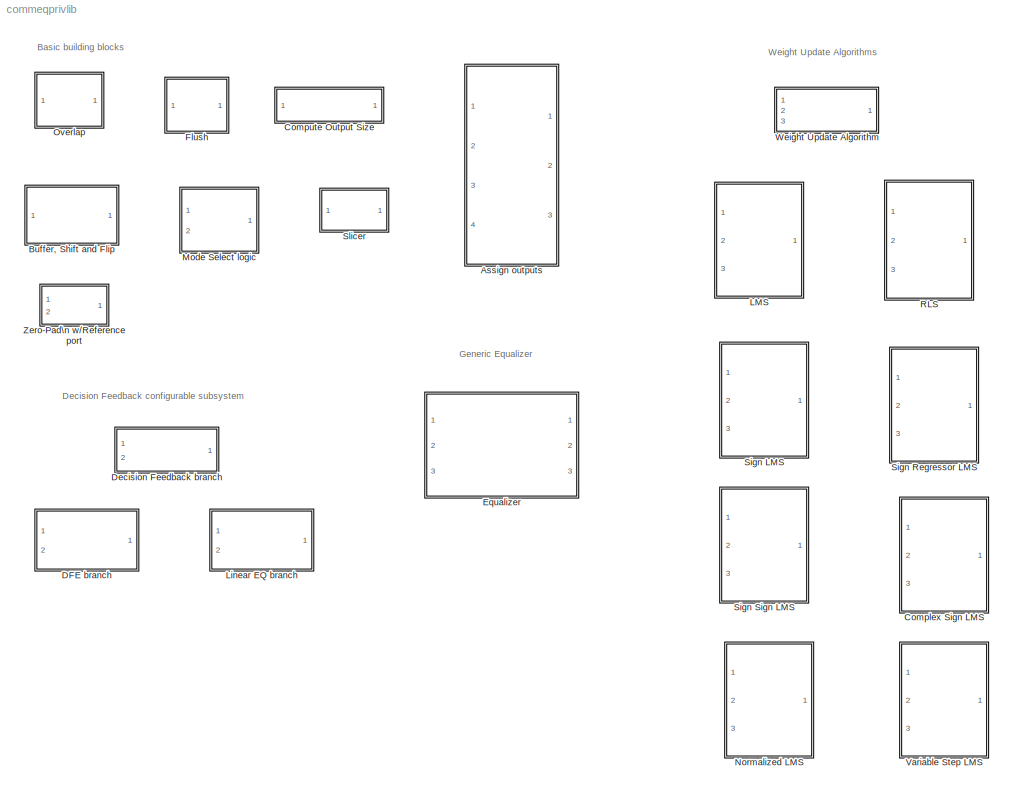
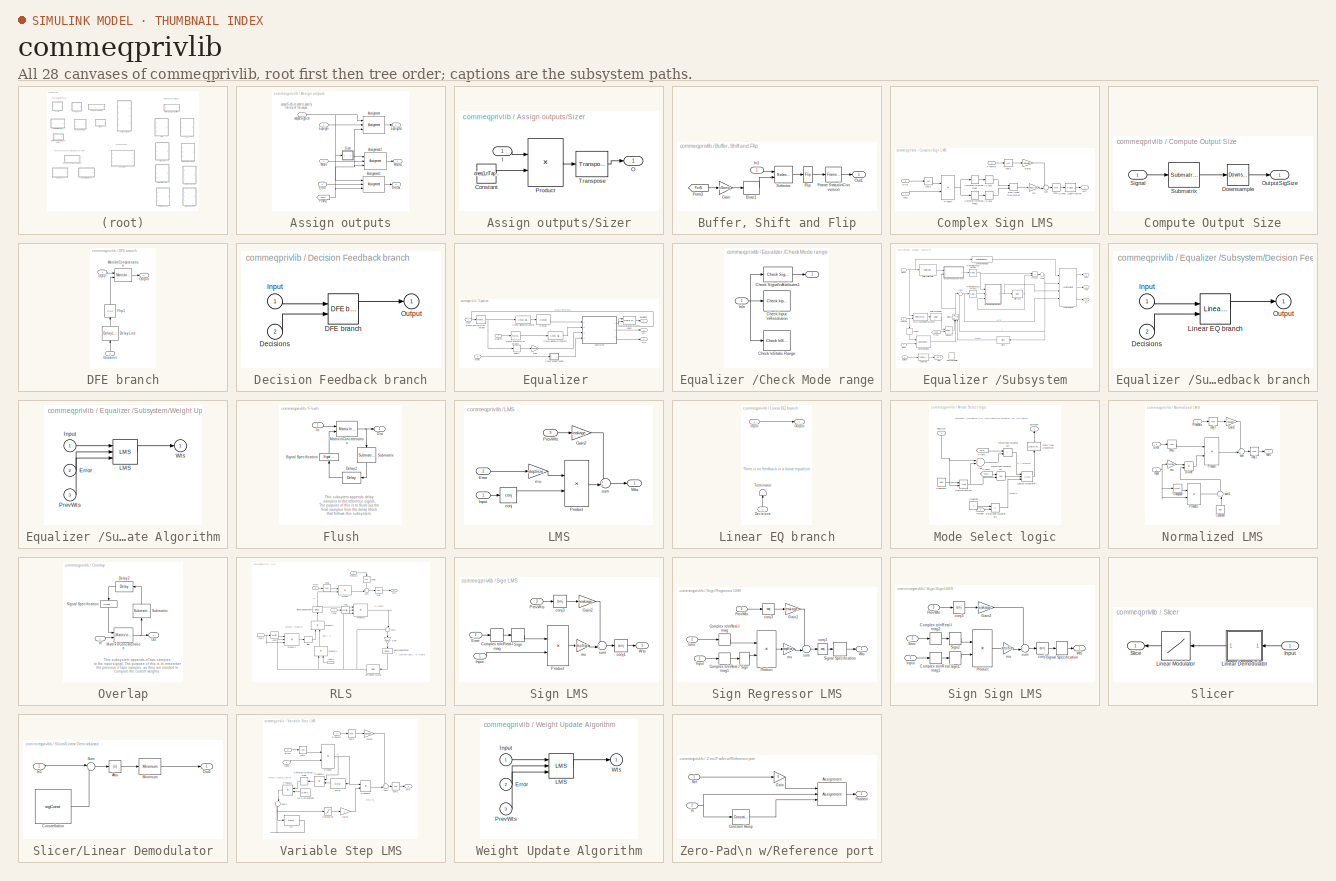
[diagram: thumbnail index - all 28 canvases of the model, root first then tree order]
MODEL commeqprivlib
KIND library
BLOCK [SubSystem] Assign outputs
  EnableExecutionContextPropagation = on
  MinAlgLoopOccurrences = off
  Ports = [4, 3]
  TreatAsAtomicUnit = off
BLOCK [Assignment] Assign outputs/Assignment
  ColumnSrc = External
  DiagnosticForDimensions = Error
  ElementSrc = External
  IndexMode = Zero-based
  Ports = [3, 1]
  Rows = -1
BLOCK [Assignment] Assign outputs/Assignment1
  ColumnSrc = External
  DiagnosticForDimensions = Error
  ElementSrc = External
  IndexMode = Zero-based
  Ports = [3, 1]
  Rows = -1
BLOCK [Assignment] Assign outputs/Assignment2
  ColumnSrc = External
  DiagnosticForDimensions = Error
  ElementSrc = External
  IndexMode = Zero-based
  InputType = Matrix
  Ports = [3, 1]
  Rows = -1
BLOCK [Inport] Assign outputs/EqSigIn
  IconDisplay = Port number
  LatchInput = off
  Port = 2
BLOCK [Outport] Assign outputs/EqSigOut
  BusOutputAsStruct = off
  IconDisplay = Port number
BLOCK [Inport] Assign outputs/ErrIn
  IconDisplay = Port number
  LatchInput = off
  Port = 4
BLOCK [Outport] Assign outputs/ErrOut
  BusOutputAsStruct = off
  IconDisplay = Port number
  Port = 3
BLOCK [From] Assign outputs/From2
  DialogController = Simulink.DDGSource
  GotoTag = ForN
BLOCK [SubSystem] Assign outputs/Sizer
  EnableExecutionContextPropagation = on
  MinAlgLoopOccurrences = off
  Ports = [1, 1]
  TreatAsAtomicUnit = off
BLOCK [Constant] Assign outputs/Sizer/Constant
  Value = ones(1,nTaps)
  VectorParams1D = off
BLOCK [Inport] Assign outputs/Sizer/I
  IconDisplay = Port number
  LatchInput = off
BLOCK [Outport] Assign outputs/Sizer/O
  BusOutputAsStruct = off
  IconDisplay = Port number
BLOCK [Product] Assign outputs/Sizer/Product
  InputSameDT = off
  Multiplication = Matrix(*)
  Ports = [2, 1]
BLOCK [Reference] Assign outputs/Sizer/Transpose  REF=dspmtrx3/Transpose
  Hermitian = off
  Ports = [1, 1]
  SourceBlock = dspmtrx3/Transpose
  SourceType = Transpose
BLOCK [Inport] Assign outputs/WtsIn
  IconDisplay = Port number
  LatchInput = off
  Port = 3
BLOCK [Outport] Assign outputs/WtsOut
  BusOutputAsStruct = off
  IconDisplay = Port number
  Port = 2
BLOCK [Inport] Assign outputs/outputSigSize
  IconDisplay = Port number
  LatchInput = off
BLOCK [SubSystem] Buffer, Shift and Flip
  EnableExecutionContextPropagation = on
  MinAlgLoopOccurrences = off
  Ports = [1, 1]
  TreatAsAtomicUnit = off
BLOCK [Bias] Buffer, Shift and Flip/Bias1
  Bias = 0:nFwdTaps-1
  SaturateOnIntegerOverflow = off
BLOCK [Reference] Buffer, Shift and Flip/Flip  REF=dspindex/Flip
  Ports = [1, 1]
  SourceBlock = dspindex/Flip
  SourceType = Flip
  dim = Columns
BLOCK [Reference] Buffer, Shift and Flip/Frame Status\nConversion  REF=dspsigattribs/Frame Status\nConversion
  Ports = [1, 1]
  SourceBlock = dspsigattribs/Frame Status\nConversion
  SourceType = Frame Status Conversion
  growRefPort = off
  outframe = Sample-based
BLOCK [From] Buffer, Shift and Flip/From3
  DialogController = Simulink.DDGSource
  GotoTag = ForN
BLOCK [Gain] Buffer, Shift and Flip/Gain
  Gain = nSamp
BLOCK [Inport] Buffer, Shift and Flip/In1
  IconDisplay = Port number
  LatchInput = off
BLOCK [Outport] Buffer, Shift and Flip/Out1
  BusOutputAsStruct = off
  IconDisplay = Port number
BLOCK [Selector] Buffer, Shift and Flip/Selector
  ElementSrc = External
  Elements = [1 3]
  IndexMode = Zero-based
  Ports = [2, 1]
BLOCK [SubSystem] Complex Sign LMS
  EnableExecutionContextPropagation = on
  MinAlgLoopOccurrences = off
  Ports = [3, 1]
  TreatAsAtomicUnit = off
BLOCK [ComplexToRealImag] Complex Sign LMS/Complex to\nReal-Imag1
  Output = Real
  Ports = [1, 1]
BLOCK [ComplexToRealImag] Complex Sign LMS/Complex to\nReal-Imag3
  Output = Imag
  Ports = [1, 1]
BLOCK [Inport] Complex Sign LMS/Error
  IconDisplay = Port number
  LatchInput = off
  Port = 2
BLOCK [Gain] Complex Sign LMS/Gain2
  Gain = leakage
BLOCK [Inport] Complex Sign LMS/Input
  IconDisplay = Port number
  LatchInput = off
BLOCK [Inport] Complex Sign LMS/PrevWts
  IconDisplay = Port number
  LatchInput = off
  Port = 3
BLOCK [Product] Complex Sign LMS/Product
  InputSameDT = off
  OutDataTypeMode = Inherit via internal rule
  Ports = [2, 1]
  RndMeth = Floor
BLOCK [RealImagToComplex] Complex Sign LMS/Real-Imag to\nComplex
  Input = Real and imag
  Ports = [2, 1]
BLOCK [Signum] Complex Sign LMS/Sign1
BLOCK [Signum] Complex Sign LMS/Sign2
BLOCK [SignalSpecification] Complex Sign LMS/Signal Specification
  SignalType = complex
BLOCK [Outport] Complex Sign LMS/Wts
  BusOutputAsStruct = off
  IconDisplay = Port number
  InitialOutput = 0
BLOCK [Math] Complex Sign LMS/conj1
  Operator = conj
  Ports = [1, 1]
BLOCK [Math] Complex Sign LMS/conj2
  Operator = conj
  Ports = [1, 1]
BLOCK [Math] Complex Sign LMS/conj3
  Operator = conj
  Ports = [1, 1]
BLOCK [Gain] Complex Sign LMS/mu
  Gain = stepSize
BLOCK [Sum] Complex Sign LMS/sum
  IconShape = round
  Inputs = ++|
  Ports = [2, 1]
BLOCK [SubSystem] Compute Output Size
  EnableExecutionContextPropagation = on
  MinAlgLoopOccurrences = off
  Ports = [1, 1]
  TreatAsAtomicUnit = off
BLOCK [Reference] Compute Output Size/Downsample  REF=dspsigops/Downsample
  N = nSamp
  Ports = [1, 1]
  SourceBlock = dspsigops/Downsample
  SourceType = Downsample
  fmode = Maintain input frame rate
  ic = 0
  phase = 0
  smode = Force single rate
BLOCK [Outport] Compute Output Size/OutputSigSize
  BusOutputAsStruct = off
  IconDisplay = Port number
BLOCK [Inport] Compute Output Size/Signal
  IconDisplay = Port number
  LatchInput = off
BLOCK [Reference] Compute Output Size/Submatrix  REF=dspmtrx3/Submatrix
  ColEndIndex = 1
  ColEndMode = Last
  ColSpan = Range of columns
  ColStartIndex = 1
  ColStartMode = First
  Ports = [1, 1]
  RowEndIndex = nFwdTaps
  RowEndMode = Offset from last
  RowSpan = Range of rows
  RowStartIndex = 1
  RowStartMode = First
  SourceBlock = dspmtrx3/Submatrix
  SourceType = Submatrix
BLOCK [SubSystem] DFE branch
  EnableExecutionContextPropagation = on
  MinAlgLoopOccurrences = off
  Ports = [2, 1]
  TreatAsAtomicUnit = off
BLOCK [Inport] DFE branch/Decisions
  IconDisplay = Port number
  LatchInput = off
  Port = 2
BLOCK [Reference] DFE branch/Delay Line  REF=dspbuff3/Delay Line
  Ports = [1, 1]
  SourceBlock = dspbuff3/Delay Line
  SourceType = Delay Line
  directfeed = off
  ic = 0
  siz = nFdbkTaps
BLOCK [Reference] DFE branch/Flip1  REF=dspindex/Flip
  Ports = [1, 1]
  SourceBlock = dspindex/Flip
  SourceType = Flip
  dim = Columns
BLOCK [Inport] DFE branch/Input
  IconDisplay = Port number
  LatchInput = off
BLOCK [Reference] DFE branch/Matrix\nConcatenation  REF=simulink/Math\nOperations/Matrix\nConcatenation
  Ports = [2, 1]
  SourceBlock = simulink/Math\nOperations/Matrix\nConcatenation
  SourceType = Matrix Concatenation
  catMethod = Vertical
  numInports = 2
BLOCK [Outport] DFE branch/Output
  BusOutputAsStruct = off
  IconDisplay = Port number
BLOCK [SubSystem] Decision Feedback branch
  BlockChoice = DFE branch
  EnableExecutionContextPropagation = on
  MemberBlocks = DFE branch,Linear EQ branch
  MinAlgLoopOccurrences = off
  Ports = [2, 1]
  TemplateBlock = self
  TreatAsAtomicUnit = off
BLOCK [Reference] Decision Feedback branch/DFE branch  REF=commeqprivlib/DFE branch
  DataTypeOverride = UseLocalSettings
  MinMaxOverflowLogging = UseLocalSettings
  Permissions = ReadWrite
  Ports = [2, 1]
  RTWFcnNameOpts = Auto
  RTWFileNameOpts = Auto
  RTWSystemCode = Auto
  ShowPortLabels = on
  SimViewingDevice = off
  SourceBlock = commeqprivlib/DFE branch
  SourceType = SubSystem
  TreatAsAtomicUnit = off
BLOCK [Inport] Decision Feedback branch/Decisions
  IconDisplay = Port number
  LatchInput = off
  Port = 2
BLOCK [Inport] Decision Feedback branch/Input
  IconDisplay = Port number
  LatchInput = off
BLOCK [Outport] Decision Feedback branch/Output
  BusOutputAsStruct = off
  IconDisplay = Port number
BLOCK [SubSystem] Equalizer 
  EnableExecutionContextPropagation = on
  MaskCallbackString = commblkeq|commblkeq
  MaskEnableString = on,on
  MaskIconFrame = on
  MaskIconOpaque = on
  MaskIconRotate = none
  MaskIconUnits = autoscale
  MaskInitialization = commblkeq
  MaskPromptString = Equalizer type|Weight update algorithm
  MaskSelfModifiable = on
  MaskStyleString = popup(Linear|DFE),popup(LMS|RLS|Sign LMS|Sign Regressor LMS|Sign Sign LMS|Complex Sign LMS|Normalized LMS|Variable Step LMS)
  MaskTabNameString = ,
  MaskToolTipString = on,on
  MaskTunableValueString = on,on
  MaskValueString = Linear|LMS
  MaskVarAliasString = ,
  MaskVariables = eqType=@1;alg=@2;
  MaskVisibilityString = on,on
  MinAlgLoopOccurrences = off
  Ports = [3, 3]
  TreatAsAtomicUnit = off
BLOCK [SubSystem] Equalizer /Check Mode range
  EnableExecutionContextPropagation = on
  MinAlgLoopOccurrences = off
  Ports = [1, 1]
  TreatAsAtomicUnit = off
BLOCK [Outport] Equalizer /Check Mode range/  
  BusOutputAsStruct = off
  IconDisplay = Port number
BLOCK [Inport] Equalizer /Check Mode range/      \n\n
  IconDisplay = Port number
  LatchInput = off
BLOCK [Reference] Equalizer /Check Mode range/Check Input \nResolution  REF=simulink/Model\nVerification/Check Input \nResolution
  Description = -Inf < u < +Inf
  Ports = [1]
  SourceBlock = simulink/Model\nVerification/Check Input \nResolution
  SourceType = Checks_Resolution
  callback = error('Mode input must be 0 or 1.')
  enabled = on
  export = off
  resolution = 1
  stopWhenAssertionFail = on
BLOCK [Reference] Equalizer /Check Mode range/Check Signal\nAttributes1  REF=dspsigattribs/Check Signal\nAttributes
  Complexity = Real
  DatatypeCheckMethod = Ignore
  DatatypeGeneral = Boolean
  Dimensions = Scalar (1-D or 2-D)
  DimsCheckMethod = Is...
  DtypeFixedSpecific = Any fixed-point
  DtypeFloatSpecific = Any floating-point
  DtypeIntSpecific = Any integer
  Frame = Ignore
  Ports = [1, 1]
  SampleMode = Ignore
  SigAttribCheckMethod = Does not match attributes exactly
  SourceBlock = dspsigattribs/Check Signal\nAttributes
  SourceType = Check Signal Attributes
BLOCK [Reference] Equalizer /Check Mode range/Check \nStatic Range  REF=simulink/Model\nVerification/Check \nStatic Range
  Description = 0 <= u <= 1
  Ports = [1]
  SourceBlock = simulink/Model\nVerification/Check \nStatic Range
  SourceType = Checks_SRange
  callback = error('Mode input must be 0 or 1.')
  enabled = on
  export = off
  icon = graphic
  max = 1
  max_included = on
  min = 0
  min_included = on
  stopWhenAssertionFail = on
BLOCK [Reference] Equalizer /Check Signal\nAttributes  REF=dspsigattribs/Check Signal\nAttributes
  Complexity = Complex
  DatatypeCheckMethod = Ignore
  DatatypeGeneral = Boolean
  Dimensions = Full matrix (2-D)
  DimsCheckMethod = Is not...
  DtypeFixedSpecific = Any fixed-point
  DtypeFloatSpecific = Any floating-point
  DtypeIntSpecific = Any integer
  Frame = Ignore
  Ports = [1, 1]
  SampleMode = Ignore
  ShowPortLabels = on
  SigAttribCheckMethod = Does not match attributes exactly
  SourceBlock = dspsigattribs/Check Signal\nAttributes
  SourceType = Check Signal Attributes
BLOCK [Reference] Equalizer /Check Signal\nAttributes1  REF=dspsigattribs/Check Signal\nAttributes
  Complexity = Complex
  DatatypeCheckMethod = Ignore
  DatatypeGeneral = Boolean
  Dimensions = Full matrix (2-D)
  DimsCheckMethod = Is not...
  DtypeFixedSpecific = Any fixed-point
  DtypeFloatSpecific = Any floating-point
  DtypeIntSpecific = Any integer
  Frame = Ignore
  Ports = [1, 1]
  SampleMode = Ignore
  ShowPortLabels = on
  SigAttribCheckMethod = Does not match attributes exactly
  SourceBlock = dspsigattribs/Check Signal\nAttributes
  SourceType = Check Signal Attributes
BLOCK [Inport] Equalizer /Desired
  IconDisplay = Port number
  LatchInput = off
  Port = 2
BLOCK [Outport] Equalizer /Equalized
  BusOutputAsStruct = off
  IconDisplay = Port number
BLOCK [Outport] Equalizer /Err
  BusOutputAsStruct = off
  IconDisplay = Port number
  Port = 2
BLOCK [Reference] Equalizer /Frame Status\nConversion  REF=dspsigattribs/Frame Status\nConversion
  Ports = [1, 1]
  ShowPortLabels = off
  SourceBlock = dspsigattribs/Frame Status\nConversion
  SourceType = Frame Status Conversion
  growRefPort = off
  outframe = Frame-based
BLOCK [Reference] Equalizer /Frame Status\nConversion1  REF=dspsigattribs/Frame Status\nConversion
  Ports = [1, 1]
  ShowPortLabels = off
  SourceBlock = dspsigattribs/Frame Status\nConversion
  SourceType = Frame Status Conversion
  growRefPort = off
  outframe = Frame-based
BLOCK [Reference] Equalizer /Frame Status\nConversion2  REF=dspsigattribs/Frame Status\nConversion
  Ports = [2, 1]
  ShowPortLabels = off
  SourceBlock = dspsigattribs/Frame Status\nConversion
  SourceType = Frame Status Conversion
  growRefPort = on
  outframe = Frame-based
BLOCK [Gain] Equalizer /Gain
  Gain = 1/nSamp
BLOCK [Inport] Equalizer /Input
  IconDisplay = Port number
  LatchInput = off
BLOCK [Inport] Equalizer /Mode
  IconDisplay = Port number
  LatchInput = off
  Port = 3
BLOCK [Reference] Equalizer /Overlap  REF=commeqprivlib/Overlap
  Ports = [1, 1]
  ShowPortLabels = on
  SourceBlock = commeqprivlib/Overlap
  SourceType = SubSystem
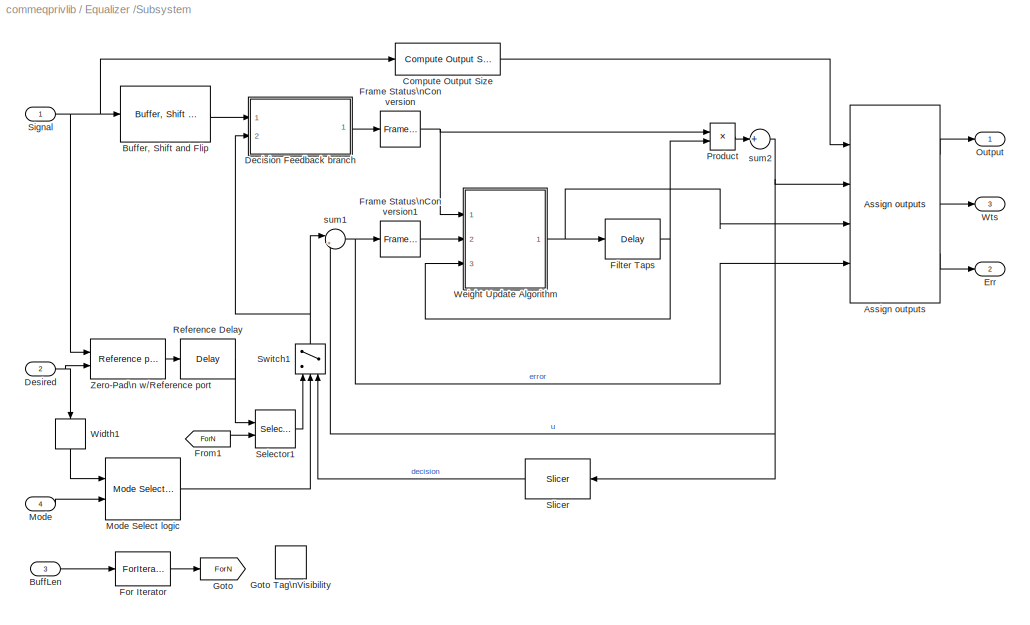
BLOCK [SubSystem] Equalizer /Subsystem
  EnableExecutionContextPropagation = on
  MinAlgLoopOccurrences = off
  Ports = [4, 3]
  TreatAsAtomicUnit = off
BLOCK [Reference] Equalizer /Subsystem/Assign outputs  REF=commeqprivlib/Assign outputs
  Ports = [4, 3]
  ShowPortLabels = on
  SourceBlock = commeqprivlib/Assign outputs
  SourceType = SubSystem
BLOCK [Inport] Equalizer /Subsystem/BuffLen
  IconDisplay = Port number
  LatchInput = off
  Port = 3
BLOCK [Reference] Equalizer /Subsystem/Buffer, Shift and Flip  REF=commeqprivlib/Buffer, Shift and Flip
  Ports = [1, 1]
  ShowPortLabels = on
  SourceBlock = commeqprivlib/Buffer, Shift and Flip
  SourceType = SubSystem
BLOCK [Reference] Equalizer /Subsystem/Compute Output Size  REF=commeqprivlib/Compute Output Size
  Ports = [1, 1]
  ShowPortLabels = on
  SourceBlock = commeqprivlib/Compute Output Size
  SourceType = SubSystem
BLOCK [SubSystem] Equalizer /Subsystem/Decision Feedback branch
  AttributesFormatString = %<BlockChoice>
  BlockChoice = Linear EQ branch
  EnableExecutionContextPropagation = on
  MemberBlocks = DFE branch,Linear EQ branch
  MinAlgLoopOccurrences = off
  Ports = [2, 1]
  TemplateBlock = commeqprivlib/Decision Feedback branch
  TreatAsAtomicUnit = off
BLOCK [Inport] Equalizer /Subsystem/Decision Feedback branch/Decisions
  IconDisplay = Port number
  LatchInput = off
  Port = 2
BLOCK [Inport] Equalizer /Subsystem/Decision Feedback branch/Input
  IconDisplay = Port number
  LatchInput = off
BLOCK [Reference] Equalizer /Subsystem/Decision Feedback branch/Linear EQ branch  REF=commeqprivlib/Linear EQ branch
  Ports = [2, 1]
  ShowPortLabels = on
  SourceBlock = commeqprivlib/Linear EQ branch
  SourceType = SubSystem
BLOCK [Outport] Equalizer /Subsystem/Decision Feedback branch/Output
  BusOutputAsStruct = off
  IconDisplay = Port number
BLOCK [Inport] Equalizer /Subsystem/Desired
  IconDisplay = Port number
  LatchInput = off
  Port = 2
BLOCK [Outport] Equalizer /Subsystem/Err
  BusOutputAsStruct = off
  IconDisplay = Port number
  Port = 2
BLOCK [Reference] Equalizer /Subsystem/Filter Taps  REF=dspsigops/Delay
  Ports = [1, 1]
  SourceBlock = dspsigops/Delay
  SourceType = Delay
  delay = 1
  dif_ic_for_ch = on
  dif_ic_for_dly = off
  dly_unit = Samples
  ic = initWeights
  ic_detail = on
  reset_popup = None
BLOCK [ForIterator] Equalizer /Subsystem/For Iterator
  IndexMode = Zero-based
  IterationLimit = 4
  IterationSource = external
  IterationVariableDataType = double
  Ports = [1, 1]
BLOCK [Reference] Equalizer /Subsystem/Frame Status\nConversion  REF=dspsigattribs/Frame Status\nConversion
  Ports = [1, 1]
  ShowPortLabels = off
  SourceBlock = dspsigattribs/Frame Status\nConversion
  SourceType = Frame Status Conversion
  growRefPort = off
  outframe = Sample-based
BLOCK [Reference] Equalizer /Subsystem/Frame Status\nConversion1  REF=dspsigattribs/Frame Status\nConversion
  Ports = [1, 1]
  ShowPortLabels = off
  SourceBlock = dspsigattribs/Frame Status\nConversion
  SourceType = Frame Status Conversion
  growRefPort = off
  outframe = Sample-based
BLOCK [From] Equalizer /Subsystem/From1
  DialogController = Simulink.DDGSource
  GotoTag = ForN
BLOCK [Goto] Equalizer /Subsystem/Goto
  DialogController = Simulink.DDGSource
  GotoTag = ForN
  TagVisibility = scoped
BLOCK [GotoTagVisibility] Equalizer /Subsystem/Goto Tag\nVisibility
  GotoTag = ForN
BLOCK [Inport] Equalizer /Subsystem/Mode
  IconDisplay = Port number
  LatchInput = off
  Port = 4
BLOCK [Reference] Equalizer /Subsystem/Mode Select logic  REF=commeqprivlib/Mode Select logic
  Ports = [2, 1]
  ShowPortLabels = on
  SourceBlock = commeqprivlib/Mode Select logic
  SourceType = SubSystem
BLOCK [Outport] Equalizer /Subsystem/Output
  BusOutputAsStruct = off
  IconDisplay = Port number
BLOCK [Product] Equalizer /Subsystem/Product
  InputSameDT = off
  OutDataTypeMode = Inherit via internal rule
  Ports = [2, 1]
  RndMeth = Floor
BLOCK [Reference] Equalizer /Subsystem/Reference Delay  REF=dspsigops/Delay
  Ports = [1, 1]
  SourceBlock = dspsigops/Delay
  SourceType = Delay
  delay = delay
  dif_ic_for_ch = off
  dif_ic_for_dly = off
  dly_unit = Samples
  ic = 0
  ic_detail = off
  reset_popup = None
BLOCK [Selector] Equalizer /Subsystem/Selector1
  ElementSrc = External
  Elements = [1 3]
  IndexMode = Zero-based
  Ports = [2, 1]
BLOCK [Inport] Equalizer /Subsystem/Signal
  IconDisplay = Port number
  LatchInput = off
BLOCK [Reference] Equalizer /Subsystem/Slicer  REF=commeqprivlib/Slicer
  Ports = [1, 1]
  ShowPortLabels = on
  SourceBlock = commeqprivlib/Slicer
  SourceType = SubSystem
BLOCK [Switch] Equalizer /Subsystem/Switch1
  Criteria = u2 > Threshold
  InputSameDT = off
BLOCK [SubSystem] Equalizer /Subsystem/Weight Update Algorithm
  AttributesFormatString = %<BlockChoice>
  BlockChoice = LMS
  EnableExecutionContextPropagation = on
  MemberBlocks = Complex Sign LMS,LMS,Normalized LMS,RLS,Sign LMS,Sign Regressor LMS,Sign Sign LMS,Variable Step LMS
  MinAlgLoopOccurrences = off
  Ports = [3, 1]
  TemplateBlock = commeqprivlib/Weight Update Algorithm
  TreatAsAtomicUnit = off
BLOCK [Inport] Equalizer /Subsystem/Weight Update Algorithm/Error
  IconDisplay = Port number
  LatchInput = off
  Port = 2
BLOCK [Inport] Equalizer /Subsystem/Weight Update Algorithm/Input
  IconDisplay = Port number
  LatchInput = off
BLOCK [Reference] Equalizer /Subsystem/Weight Update Algorithm/LMS  REF=commeqprivlib/LMS
  Ports = [3, 1]
  ShowPortLabels = on
  SourceBlock = commeqprivlib/LMS
  SourceType = SubSystem
BLOCK [Inport] Equalizer /Subsystem/Weight Update Algorithm/PrevWts
  IconDisplay = Port number
  LatchInput = off
  Port = 3
BLOCK [Outport] Equalizer /Subsystem/Weight Update Algorithm/Wts
  BusOutputAsStruct = off
  IconDisplay = Port number
BLOCK [Width] Equalizer /Subsystem/Width1
  OutputDataTypeScalingMode = Inherit via back propagation
  ShowAdditionalParam = on
BLOCK [Outport] Equalizer /Subsystem/Wts
  BusOutputAsStruct = off
  IconDisplay = Port number
  Port = 3
BLOCK [Reference] Equalizer /Subsystem/Zero-Pad\n w//Reference port  REF=commeqprivlib/Zero-Pad\n w//Reference port
  Ports = [2, 1]
  ShowPortLabels = on
  SourceBlock = commeqprivlib/Zero-Pad\n w//Reference port
  SourceType = SubSystem
BLOCK [Sum] Equalizer /Subsystem/sum1
  IconShape = round
  Inputs = |+-
  Ports = [2, 1]
BLOCK [Sum] Equalizer /Subsystem/sum2
  Inputs = +
  Ports = [1, 1]
BLOCK [Width] Equalizer /Width
  OutputDataTypeScalingMode = Inherit via back propagation
  ShowAdditionalParam = on
BLOCK [Outport] Equalizer /Wts
  BusOutputAsStruct = off
  IconDisplay = Port number
  Port = 3
BLOCK [SubSystem] Flush
  EnableExecutionContextPropagation = on
  MinAlgLoopOccurrences = off
  Ports = [1, 1]
  TreatAsAtomicUnit = off
BLOCK [Reference] Flush/Delay2  REF=dspsigops/Delay
  Ports = [1, 1]
  SourceBlock = dspsigops/Delay
  SourceType = Delay
  delay = delay
  dif_ic_for_ch = off
  dif_ic_for_dly = off
  dly_unit = Samples
  ic = 0
  ic_detail = off
  reset_popup = None
BLOCK [Inport] Flush/In
  IconDisplay = Port number
  LatchInput = off
BLOCK [Reference] Flush/Matrix\nConcatenation  REF=simulink/Math\nOperations/Matrix\nConcatenation
  Ports = [2, 1]
  SourceBlock = simulink/Math\nOperations/Matrix\nConcatenation
  SourceType = Matrix Concatenation
  catMethod = Vertical
  numInports = 2
BLOCK [Outport] Flush/Out
  BusOutputAsStruct = off
  IconDisplay = Port number
BLOCK [Reference] Flush/Signal Specification  REF=simulink/Signal\nAttributes/Signal Specification
  D = [delay 1]
  DataType = auto
  OutDataType = sfix(16)
  OutScaling = 2^0
  Ports = [1, 1]
  SamplingMode = auto
  SignalType = auto
  SourceBlock = simulink/Signal\nAttributes/Signal Specification
  SourceType = Signal Specification
  Ts = -1
BLOCK [Reference] Flush/Submatrix  REF=dspmtrx3/Submatrix
  ColEndIndex = 1
  ColEndMode = Last
  ColSpan = Range of columns
  ColStartIndex = 1
  ColStartMode = First
  Ports = [1, 1]
  RowEndIndex = 1
  RowEndMode = Last
  RowSpan = Range of rows
  RowStartIndex = delay-1
  RowStartMode = Offset from last
  SourceBlock = dspmtrx3/Submatrix
  SourceType = Submatrix
BLOCK [SubSystem] LMS
  EnableExecutionContextPropagation = on
  MinAlgLoopOccurrences = off
  Ports = [3, 1]
  TreatAsAtomicUnit = off
BLOCK [Inport] LMS/Error
  IconDisplay = Port number
  LatchInput = off
  Port = 2
BLOCK [Gain] LMS/Gain2
  Gain = leakage
BLOCK [Inport] LMS/Input
  IconDisplay = Port number
  LatchInput = off
BLOCK [Inport] LMS/PrevWts
  IconDisplay = Port number
  LatchInput = off
  Port = 3
BLOCK [Product] LMS/Product
  InputSameDT = off
  OutDataTypeMode = Inherit via internal rule
  Ports = [2, 1]
  RndMeth = Floor
BLOCK [Outport] LMS/Wts
  BusOutputAsStruct = off
  IconDisplay = Port number
  InitialOutput = 0
BLOCK [Math] LMS/conj
  Operator = conj
  Ports = [1, 1]
BLOCK [Gain] LMS/mu
  Gain = stepSize
BLOCK [Sum] LMS/sum
  IconShape = round
  Inputs = ++|
  Ports = [2, 1]
BLOCK [SubSystem] Linear EQ branch
  EnableExecutionContextPropagation = on
  MinAlgLoopOccurrences = off
  Ports = [2, 1]
  TreatAsAtomicUnit = off
BLOCK [Inport] Linear EQ branch/Decisions
  IconDisplay = Port number
  LatchInput = off
  Port = 2
BLOCK [Inport] Linear EQ branch/Input
  IconDisplay = Port number
  LatchInput = off
BLOCK [Outport] Linear EQ branch/Output
  BusOutputAsStruct = off
  IconDisplay = Port number
BLOCK [Terminator] Linear EQ branch/Terminator
BLOCK [SubSystem] Mode Select logic
  EnableExecutionContextPropagation = on
  MinAlgLoopOccurrences = off
  Ports = [2, 1]
  TreatAsAtomicUnit = off
BLOCK [Sum] Mode Select logic/Add
  InputSameDT = off
  OutDataTypeMode = Inherit via internal rule
  OutScaling = 2^-10
  Ports = [2, 1]
  SaturateOnIntegerOverflow = off
BLOCK [Constant] Mode Select logic/Constant
BLOCK [Constant] Mode Select logic/Constant2
  Value = delay
BLOCK [DataTypeConversion] Mode Select logic/Data Type Conversion
  OutDataTypeMode = double
  RndMeth = Floor
  SaturateOnIntegerOverflow = off
BLOCK [From] Mode Select logic/From1
  DialogController = Simulink.DDGSource
  GotoTag = ForN
BLOCK [From] Mode Select logic/From2
  DialogController = Simulink.DDGSource
  GotoTag = ForN
BLOCK [Logic] Mode Select logic/Logical\nOperator1
  AllPortsSameDT = off
  Inputs = 3
  OutDataTypeMode = Boolean
  Ports = [3, 1]
BLOCK [Math] Mode Select logic/Math\nFunction
  Operator = mod
  Ports = [2, 1]
BLOCK [RelationalOperator] Mode Select logic/Relational\nOperator1
  InputSameDT = off
  LogicOutDataTypeMode = Boolean
BLOCK [RelationalOperator] Mode Select logic/Relational\nOperator2
  InputSameDT = off
  LogicOutDataTypeMode = Boolean
  Operator = ==
BLOCK [RelationalOperator] Mode Select logic/Relational\nOperator3
  InputSameDT = off
  LogicOutDataTypeMode = Boolean
  Operator = <
BLOCK [Inport] Mode Select logic/desSize
  IconDisplay = Port number
  LatchInput = off
BLOCK [Inport] Mode Select logic/inMode
  IconDisplay = Port number
  LatchInput = off
  Port = 2
BLOCK [Outport] Mode Select logic/outMode
  BusOutputAsStruct = off
  IconDisplay = Port number
BLOCK [SubSystem] Normalized LMS
  EnableExecutionContextPropagation = on
  MinAlgLoopOccurrences = off
  Ports = [3, 1]
  TreatAsAtomicUnit = off
BLOCK [Constant] Normalized LMS/Constant
  Value = bias
BLOCK [Product] Normalized LMS/Divide
  InputSameDT = off
  Inputs = */
  Multiplication = Matrix(*)
  OutDataTypeMode = Inherit via internal rule
  OutScaling = 2^-10
  Ports = [2, 1]
  RndMeth = Floor
  SaturateOnIntegerOverflow = off
BLOCK [Inport] Normalized LMS/Error
  IconDisplay = Port number
  LatchInput = off
  Port = 2
BLOCK [Gain] Normalized LMS/Gain2
  Gain = leakage
BLOCK [Inport] Normalized LMS/Input
  IconDisplay = Port number
  LatchInput = off
BLOCK [Inport] Normalized LMS/PrevWts
  IconDisplay = Port number
  LatchInput = off
  Port = 3
BLOCK [Product] Normalized LMS/Product
  InputSameDT = off
  OutDataTypeMode = Inherit via internal rule
  Ports = [2, 1]
  RndMeth = Floor
BLOCK [Product] Normalized LMS/Product1
  InputSameDT = off
  Multiplication = Matrix(*)
  OutDataTypeMode = Inherit via internal rule
  Ports = [2, 1]
  RndMeth = Floor
BLOCK [Reference] Normalized LMS/Transpose  REF=dspmtrx3/Transpose
  Hermitian = on
  Ports = [1, 1]
  SourceBlock = dspmtrx3/Transpose
  SourceType = Transpose
BLOCK [Outport] Normalized LMS/Wts
  BusOutputAsStruct = off
  IconDisplay = Port number
  InitialOutput = 0
BLOCK [Math] Normalized LMS/conj1
  Operator = conj
  Ports = [1, 1]
BLOCK [Math] Normalized LMS/conj2
  Operator = conj
  Ports = [1, 1]
BLOCK [Math] Normalized LMS/conj3
  Operator = conj
  Ports = [1, 1]
BLOCK [Gain] Normalized LMS/mu
  Gain = stepSize
BLOCK [Sum] Normalized LMS/sum
  IconShape = round
  Inputs = ++|
  Ports = [2, 1]
BLOCK [Sum] Normalized LMS/sum1
  IconShape = round
  Inputs = ++|
  Ports = [2, 1]
BLOCK [SubSystem] Overlap
  EnableExecutionContextPropagation = on
  MinAlgLoopOccurrences = off
  Ports = [1, 1]
  TreatAsAtomicUnit = off
BLOCK [Reference] Overlap/Delay2  REF=dspsigops/Delay
  Ports = [1, 1]
  SourceBlock = dspsigops/Delay
  SourceType = Delay
  delay = nFwdTaps
  dif_ic_for_ch = off
  dif_ic_for_dly = off
  dly_unit = Samples
  ic = 0
  ic_detail = off
  reset_popup = None
BLOCK [Inport] Overlap/In
  IconDisplay = Port number
  LatchInput = off
BLOCK [Reference] Overlap/Matrix\nConcatenation  REF=simulink/Math\nOperations/Matrix\nConcatenation
  Ports = [2, 1]
  SourceBlock = simulink/Math\nOperations/Matrix\nConcatenation
  SourceType = Matrix Concatenation
  catMethod = Vertical
  numInports = 2
BLOCK [Outport] Overlap/Out
  BusOutputAsStruct = off
  IconDisplay = Port number
BLOCK [Reference] Overlap/Signal Specification  REF=simulink/Signal\nAttributes/Signal Specification
  D = [nFwdTaps 1]
  DataType = auto
  OutDataType = sfix(16)
  OutScaling = 2^0
  Ports = [1, 1]
  SamplingMode = auto
  SignalType = auto
  SourceBlock = simulink/Signal\nAttributes/Signal Specification
  SourceType = Signal Specification
  Ts = -1
BLOCK [Reference] Overlap/Submatrix  REF=dspmtrx3/Submatrix
  ColEndIndex = 1
  ColEndMode = Last
  ColSpan = Range of columns
  ColStartIndex = 1
  ColStartMode = First
  Ports = [1, 1]
  RowEndIndex = 1
  RowEndMode = Last
  RowSpan = Range of rows
  RowStartIndex = nFwdTaps-1
  RowStartMode = Offset from last
  SourceBlock = dspmtrx3/Submatrix
  SourceType = Submatrix
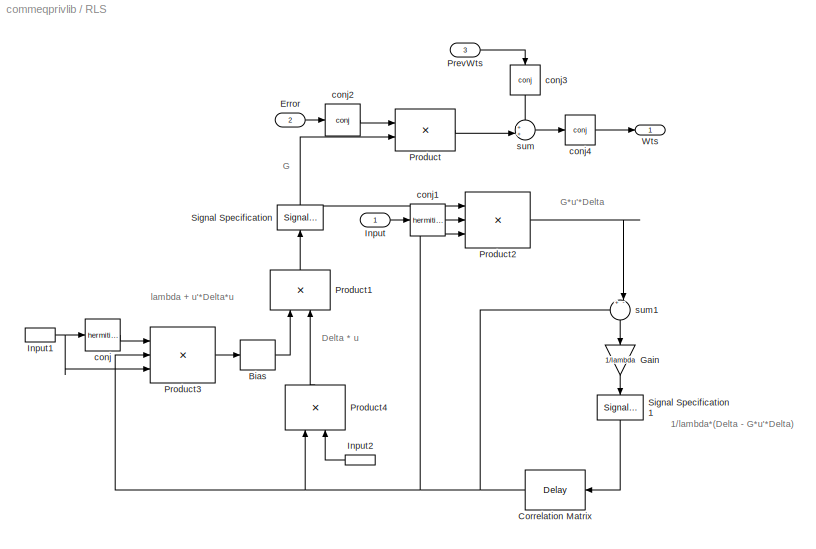
BLOCK [SubSystem] RLS
  EnableExecutionContextPropagation = on
  MinAlgLoopOccurrences = off
  Ports = [3, 1]
  TreatAsAtomicUnit = off
BLOCK [Bias] RLS/Bias
  Bias = lambda
  SaturateOnIntegerOverflow = off
BLOCK [Reference] RLS/Correlation Matrix  REF=dspsigops/Delay
  Ports = [1, 1]
  SourceBlock = dspsigops/Delay
  SourceType = Delay
  delay = 1
  dif_ic_for_ch = on
  dif_ic_for_dly = off
  dly_unit = Samples
  ic = invCorr
  ic_detail = on
  reset_popup = None
BLOCK [Inport] RLS/Error
  IconDisplay = Port number
  LatchInput = off
  Port = 2
BLOCK [Gain] RLS/Gain
  Gain = 1/lambda
  OutDataTypeMode = Inherit via internal rule
  ParameterDataTypeMode = Inherit via internal rule
  SaturateOnIntegerOverflow = off
BLOCK [Inport] RLS/Input
  IconDisplay = Port number
  LatchInput = off
BLOCK [InportShadow] RLS/Input1
  IconDisplay = Port number
  LatchInput = off
BLOCK [InportShadow] RLS/Input2
  IconDisplay = Port number
  LatchInput = off
BLOCK [Inport] RLS/PrevWts
  IconDisplay = Port number
  LatchInput = off
  Port = 3
BLOCK [Product] RLS/Product
  InputSameDT = off
  OutDataTypeMode = Inherit via internal rule
  Ports = [2, 1]
  RndMeth = Floor
BLOCK [Product] RLS/Product1
  InputSameDT = off
  Inputs = /*
  OutDataTypeMode = Inherit via internal rule
  Ports = [2, 1]
  RndMeth = Floor
BLOCK [Product] RLS/Product2
  InputSameDT = off
  Inputs = 3
  Multiplication = Matrix(*)
  OutDataTypeMode = Inherit via internal rule
  Ports = [3, 1]
  RndMeth = Floor
BLOCK [Product] RLS/Product3
  InputSameDT = off
  Inputs = 3
  Multiplication = Matrix(*)
  OutDataTypeMode = Inherit via internal rule
  Ports = [3, 1]
  RndMeth = Floor
BLOCK [Product] RLS/Product4
  InputSameDT = off
  Multiplication = Matrix(*)
  OutDataTypeMode = Inherit via internal rule
  Ports = [2, 1]
  RndMeth = Floor
BLOCK [SignalSpecification] RLS/Signal Specification
  Dimensions = [nTaps 1]
BLOCK [SignalSpecification] RLS/Signal Specification1
  Dimensions = [nTaps nTaps]
BLOCK [Outport] RLS/Wts
  BusOutputAsStruct = off
  IconDisplay = Port number
  InitialOutput = 0
BLOCK [Math] RLS/conj
  Operator = hermitian
  Ports = [1, 1]
BLOCK [Math] RLS/conj1
  Operator = hermitian
  Ports = [1, 1]
BLOCK [Math] RLS/conj2
  Operator = conj
  Ports = [1, 1]
BLOCK [Math] RLS/conj3
  Operator = conj
  Ports = [1, 1]
BLOCK [Math] RLS/conj4
  Operator = conj
  Ports = [1, 1]
BLOCK [Sum] RLS/sum
  IconShape = round
  Inputs = ++|
  Ports = [2, 1]
BLOCK [Sum] RLS/sum1
  IconShape = round
  Inputs = +-
  Ports = [2, 1]
BLOCK [SubSystem] Sign LMS
  EnableExecutionContextPropagation = on
  MinAlgLoopOccurrences = off
  Ports = [3, 1]
  TreatAsAtomicUnit = off
BLOCK [ComplexToRealImag] Sign LMS/Complex to\nReal-Imag
  Output = Real
  Ports = [1, 1]
BLOCK [Inport] Sign LMS/Error
  IconDisplay = Port number
  LatchInput = off
  Port = 2
BLOCK [Gain] Sign LMS/Gain2
  Gain = leakage
BLOCK [Inport] Sign LMS/Input
  IconDisplay = Port number
  LatchInput = off
BLOCK [Inport] Sign LMS/PrevWts
  IconDisplay = Port number
  LatchInput = off
  Port = 3
BLOCK [Product] Sign LMS/Product
  InputSameDT = off
  OutDataTypeMode = Inherit via internal rule
  Ports = [2, 1]
  RndMeth = Floor
BLOCK [Signum] Sign LMS/Sign
BLOCK [Outport] Sign LMS/Wts
  BusOutputAsStruct = off
  IconDisplay = Port number
  InitialOutput = 0
BLOCK [Math] Sign LMS/conj1
  Operator = conj
  Ports = [1, 1]
BLOCK [Math] Sign LMS/conj3
  Operator = conj
  Ports = [1, 1]
BLOCK [Gain] Sign LMS/mu
  Gain = stepSize
BLOCK [Sum] Sign LMS/sum
  IconShape = round
  Inputs = ++|
  Ports = [2, 1]
BLOCK [SubSystem] Sign Regressor LMS
  EnableExecutionContextPropagation = on
  MinAlgLoopOccurrences = off
  Ports = [3, 1]
  TreatAsAtomicUnit = off
BLOCK [ComplexToRealImag] Sign Regressor LMS/Complex to\nReal-Imag
  Output = Real
  Ports = [1, 1]
BLOCK [ComplexToRealImag] Sign Regressor LMS/Complex to\nReal-Imag1
  Output = Real
  Ports = [1, 1]
BLOCK [Inport] Sign Regressor LMS/Error
  IconDisplay = Port number
  LatchInput = off
  Port = 2
BLOCK [Gain] Sign Regressor LMS/Gain2
  Gain = leakage
BLOCK [Inport] Sign Regressor LMS/Input
  IconDisplay = Port number
  LatchInput = off
BLOCK [Inport] Sign Regressor LMS/PrevWts
  IconDisplay = Port number
  LatchInput = off
  Port = 3
BLOCK [Product] Sign Regressor LMS/Product
  InputSameDT = off
  OutDataTypeMode = Inherit via internal rule
  Ports = [2, 1]
  RndMeth = Floor
BLOCK [Signum] Sign Regressor LMS/Sign
BLOCK [SignalSpecification] Sign Regressor LMS/Signal Specification
  SignalType = complex
BLOCK [Outport] Sign Regressor LMS/Wts
  BusOutputAsStruct = off
  IconDisplay = Port number
  InitialOutput = 0
BLOCK [Math] Sign Regressor LMS/conj1
  Operator = conj
  Ports = [1, 1]
BLOCK [Math] Sign Regressor LMS/conj3
  Operator = conj
  Ports = [1, 1]
BLOCK [Gain] Sign Regressor LMS/mu
  Gain = stepSize
BLOCK [Sum] Sign Regressor LMS/sum
  IconShape = round
  Inputs = ++|
  Ports = [2, 1]
BLOCK [SubSystem] Sign Sign LMS
  EnableExecutionContextPropagation = on
  MinAlgLoopOccurrences = off
  Ports = [3, 1]
  TreatAsAtomicUnit = off
BLOCK [ComplexToRealImag] Sign Sign LMS/Complex to\nReal-Imag1
  Output = Real
  Ports = [1, 1]
BLOCK [ComplexToRealImag] Sign Sign LMS/Complex to\nReal-Imag2
  Output = Real
  Ports = [1, 1]
BLOCK [Inport] Sign Sign LMS/Error
  IconDisplay = Port number
  LatchInput = off
  Port = 2
BLOCK [Gain] Sign Sign LMS/Gain2
  Gain = leakage
BLOCK [Inport] Sign Sign LMS/Input
  IconDisplay = Port number
  LatchInput = off
BLOCK [Inport] Sign Sign LMS/PrevWts
  IconDisplay = Port number
  LatchInput = off
  Port = 3
BLOCK [Product] Sign Sign LMS/Product
  InputSameDT = off
  OutDataTypeMode = Inherit via internal rule
  Ports = [2, 1]
  RndMeth = Floor
BLOCK [Signum] Sign Sign LMS/Sign1
BLOCK [Signum] Sign Sign LMS/Sign2
BLOCK [SignalSpecification] Sign Sign LMS/Signal Specification
  SignalType = complex
BLOCK [Outport] Sign Sign LMS/Wts
  BusOutputAsStruct = off
  IconDisplay = Port number
  InitialOutput = 0
BLOCK [Math] Sign Sign LMS/conj1
  Operator = conj
  Ports = [1, 1]
BLOCK [Math] Sign Sign LMS/conj3
  Operator = conj
  Ports = [1, 1]
BLOCK [Gain] Sign Sign LMS/mu
  Gain = stepSize
BLOCK [Sum] Sign Sign LMS/sum
  IconShape = round
  Inputs = ++|
  Ports = [2, 1]
BLOCK [SubSystem] Slicer
  EnableExecutionContextPropagation = on
  MinAlgLoopOccurrences = off
  Ports = [1, 1]
  TreatAsAtomicUnit = off
BLOCK [Inport] Slicer/Input
  IconDisplay = Port number
  LatchInput = off
BLOCK [SubSystem] Slicer/Linear Demodulator
  EnableExecutionContextPropagation = on
  MinAlgLoopOccurrences = off
  Ports = [1, 1]
  TreatAsAtomicUnit = off
BLOCK [Abs] Slicer/Linear Demodulator/Abs
BLOCK [Constant] Slicer/Linear Demodulator/Constellation
  Value = sigConst
  VectorParams1D = off
BLOCK [Inport] Slicer/Linear Demodulator/In1
  IconDisplay = Port number
  LatchInput = off
BLOCK [Reference] Slicer/Linear Demodulator/Minimum  REF=dspstat3/Minimum
  Ports = [1, 1]
  SourceBlock = dspstat3/Minimum
  SourceType = Minimum
  accumFracLength = 30
  accumMode = Same as input
  accumWordLength = 32
  additionalParams = off
  allowOverrides = on
  fcn = Index
  overflowMode = off
  prodOutputFracLength = 30
  prodOutputMode = Same as input
  prodOutputWordLength = 32
  reset = None
  roundingMode = Floor
BLOCK [Outport] Slicer/Linear Demodulator/Out1
  BusOutputAsStruct = off
  IconDisplay = Port number
BLOCK [Sum] Slicer/Linear Demodulator/Sum
  IconShape = round
  InputSameDT = off
  Inputs = |+-
  OutDataTypeMode = Inherit via internal rule
  Ports = [2, 1]
BLOCK [Lookup] Slicer/Linear Modulator
  DialogController = Simulink.DDGSource
  InputValues = [1:length(sigConst)]
  LookUpMeth = Use Input Nearest
  OutputValues = sigConst
BLOCK [Outport] Slicer/Slice
  BusOutputAsStruct = off
  IconDisplay = Port number
BLOCK [SubSystem] Variable Step LMS
  EnableExecutionContextPropagation = on
  MinAlgLoopOccurrences = off
  Ports = [3, 1]
  TreatAsAtomicUnit = off
BLOCK [ComplexToRealImag] Variable Step LMS/Complex to\nReal-Imag
  Output = Real
  Ports = [1, 1]
BLOCK [Reference] Variable Step LMS/DSP\nConstant  REF=dspsrcs4/DSP\nConstant
  FramebasedOutput = -inf
  InterpretAs1D = -inf
  Ports = [0, 1]
  SampleMode = Discrete
  ShowPortLabels = on
  SourceBlock = dspsrcs4/DSP\nConstant
  SourceType = DSP Constant
  Ts = -inf
  Value = incMu
  additionalParams = off
  allowOverrides = on
  continuousOutput = Sample-based
  dataType = Inherit from 'Constant value'
  discreteOutput = Sample-based
  fracBitsMode = Best precision
  framePeriod = 2
  numFracBits = 15
  sampTime = -1
  udDataType = sfix(16)
  wordLen = 16
BLOCK [Inport] Variable Step LMS/Error
  IconDisplay = Port number
  LatchInput = off
  Port = 2
BLOCK [Gain] Variable Step LMS/Gain1
  Gain = 2
BLOCK [Gain] Variable Step LMS/Gain2
  Gain = leakage
BLOCK [Inport] Variable Step LMS/Input
  IconDisplay = Port number
  LatchInput = off
BLOCK [Inport] Variable Step LMS/PrevWts
  IconDisplay = Port number
  LatchInput = off
  Port = 3
BLOCK [Product] Variable Step LMS/Product
  InputSameDT = off
  OutDataTypeMode = Inherit via internal rule
  Ports = [2, 1]
  RndMeth = Floor
BLOCK [Product] Variable Step LMS/Product1
  InputSameDT = off
  OutDataTypeMode = Inherit via internal rule
  Ports = [2, 1]
  RndMeth = Floor
BLOCK [Product] Variable Step LMS/Product2
  InputSameDT = off
  OutDataTypeMode = Inherit via internal rule
  Ports = [2, 1]
  RndMeth = Floor
BLOCK [Product] Variable Step LMS/Product3
  InputSameDT = off
  OutDataTypeMode = Inherit via internal rule
  Ports = [2, 1]
  RndMeth = Floor
BLOCK [Saturate] Variable Step LMS/Saturation
  LowerLimit = minMu
  UpperLimit = maxMu
BLOCK [Outport] Variable Step LMS/Wts
  BusOutputAsStruct = off
  IconDisplay = Port number
  InitialOutput = 0
BLOCK [Math] Variable Step LMS/conj1
  Operator = conj
  Ports = [1, 1]
BLOCK [Math] Variable Step LMS/conj2
  Operator = conj
  Ports = [1, 1]
BLOCK [Math] Variable Step LMS/conj3
  Operator = conj
  Ports = [1, 1]
BLOCK [Reference] Variable Step LMS/gOld  REF=dspsigops/Delay
  Ports = [1, 1]
  SourceBlock = dspsigops/Delay
  SourceType = Delay
  delay = 1
  dif_ic_for_ch = off
  dif_ic_for_dly = off
  dly_unit = Samples
  ic = 0
  ic_detail = on
  reset_popup = None
BLOCK [Reference] Variable Step LMS/mu  REF=dspsigops/Delay
  Ports = [1, 1]
  SourceBlock = dspsigops/Delay
  SourceType = Delay
  delay = 1
  dif_ic_for_ch = off
  dif_ic_for_dly = off
  dly_unit = Samples
  ic = initMu
  ic_detail = on
  reset_popup = None
BLOCK [Sum] Variable Step LMS/sum
  IconShape = round
  Inputs = ++|
  Ports = [2, 1]
BLOCK [Sum] Variable Step LMS/sum1
  IconShape = round
  Inputs = ++|
  Ports = [2, 1]
BLOCK [SubSystem] Weight Update Algorithm
  BlockChoice = LMS
  EnableExecutionContextPropagation = on
  MemberBlocks = Complex Sign LMS,LMS,Normalized LMS,RLS,Sign LMS,Sign Regressor LMS,Sign Sign LMS,Variable Step LMS
  MinAlgLoopOccurrences = off
  Ports = [3, 1]
  TemplateBlock = self
  TreatAsAtomicUnit = off
BLOCK [Inport] Weight Update Algorithm/Error
  IconDisplay = Port number
  LatchInput = off
  Port = 2
BLOCK [Inport] Weight Update Algorithm/Input
  IconDisplay = Port number
  LatchInput = off
BLOCK [Reference] Weight Update Algorithm/LMS  REF=commeqprivlib/LMS
  Ports = [3, 1]
  ShowPortLabels = on
  SourceBlock = commeqprivlib/LMS
  SourceType = SubSystem
BLOCK [Inport] Weight Update Algorithm/PrevWts
  IconDisplay = Port number
  LatchInput = off
  Port = 3
BLOCK [Outport] Weight Update Algorithm/Wts
  BusOutputAsStruct = off
  IconDisplay = Port number
BLOCK [SubSystem] Zero-Pad\n w//Reference port
  EnableExecutionContextPropagation = on
  MinAlgLoopOccurrences = off
  Ports = [2, 1]
  TreatAsAtomicUnit = off
BLOCK [Assignment] Zero-Pad\n w//Reference port/Assignment
  ColumnSrc = External
  DiagnosticForDimensions = Error
  ElementSrc = External
  IndexMode = Zero-based
  Ports = [3, 1]
  Rows = -1
BLOCK [Reference] Zero-Pad\n w//Reference port/Constant Ramp  REF=dspsrcs4/Constant Ramp
  L = Rows
  Offset = 0
  Ports = [1, 1]
  Slope = 1
  SourceBlock = dspsrcs4/Constant Ramp
  SourceType = Constant Ramp
  additionalParams = off
  allowOverrides = on
  dataType = Same as input
  fracBitsMode = Best precision
  numFracBits = 15
  udDataType = sfix(16)
  wordLen = 16
BLOCK [Gain] Zero-Pad\n w//Reference port/Gain
  Gain = 0
  OutDataTypeMode = Inherit via internal rule
  ParameterDataTypeMode = Inherit via internal rule
  SaturateOnIntegerOverflow = off
BLOCK [Inport] Zero-Pad\n w//Reference port/In
  IconDisplay = Port number
  LatchInput = off
  Port = 2
BLOCK [Outport] Zero-Pad\n w//Reference port/Padded
  BusOutputAsStruct = off
  IconDisplay = Port number
BLOCK [Inport] Zero-Pad\n w//Reference port/Ref
  IconDisplay = Port number
  LatchInput = off
ANNOTATION (root): Basic building blocks
ANNOTATION (root): Decision Feedback configurable subsystem
ANNOTATION (root): Generic Equalizer
ANNOTATION (root): Weight Update Algorithms
ANNOTATION Assign outputs: outputSigSize used to specify \nthe size of the output.
ANNOTATION Flush: This subsytem appends delay \nsamples to the reference signal.\nThe purpose of this is to flush out the \nfinal samples from the delay block \nthat follows this subsystem.
ANNOTATION Linear EQ branch: There is no feedback in a linear equalizer
ANNOTATION Mode Select logic: outMode = (inMode==1) && (forN delay)
ANNOTATION Overlap: This subsystem appends nTaps samples \nto the input signal. The purpose of this is to remember\nthe previous nTaps sampes, as they are needed to \ncompute the current weights.\n
ANNOTATION RLS: 1/lambda*(Delta - G*u'*Delta)
ANNOTATION RLS: Delta * u
ANNOTATION RLS: G
ANNOTATION RLS: G*u'*Delta
ANNOTATION RLS: lambda + u'*Delta*u
ANNOTATION Variable Step LMS: 2*mu.*g
ANNOTATION Variable Step LMS: IncMu * real(g.*gOld)
ANNOTATION Variable Step LMS: g
LINE Assign outputs/Assignment1:1 -> Assign outputs/ErrOut:1
LINE Assign outputs/Assignment2:1 -> Assign outputs/WtsOut:1
LINE Assign outputs/Assignment:1 -> Assign outputs/EqSigOut:1
LINE Assign outputs/EqSigIn:1 -> Assign outputs/Assignment:2
LINE Assign outputs/ErrIn:1 -> Assign outputs/Assignment1:2
NET Assign outputs/From2:1 -> Assign outputs/Assignment1:3, Assign outputs/Assignment2:3, Assign outputs/Assignment:3
LINE Assign outputs/Sizer/Constant:1 -> Assign outputs/Sizer/Product:2
LINE Assign outputs/Sizer/I:1 -> Assign outputs/Sizer/Product:1
LINE Assign outputs/Sizer/Product:1 -> Assign outputs/Sizer/Transpose:1
LINE Assign outputs/Sizer/Transpose:1 -> Assign outputs/Sizer/O:1
LINE Assign outputs/Sizer:1 -> Assign outputs/Assignment2:1
LINE Assign outputs/WtsIn:1 -> Assign outputs/Assignment2:2
NET Assign outputs/outputSigSize:1 -> Assign outputs/Assignment1:1, Assign outputs/Assignment:1, Assign outputs/Sizer:1
LINE Buffer, Shift and Flip/Bias1:1 -> Buffer, Shift and Flip/Selector:2
LINE Buffer, Shift and Flip/Flip:1 -> Buffer, Shift and Flip/Frame Status\nConversion:1
LINE Buffer, Shift and Flip/Frame Status\nConversion:1 -> Buffer, Shift and Flip/Out1:1
LINE Buffer, Shift and Flip/From3:1 -> Buffer, Shift and Flip/Gain:1
LINE Buffer, Shift and Flip/Gain:1 -> Buffer, Shift and Flip/Bias1:1
LINE Buffer, Shift and Flip/In1:1 -> Buffer, Shift and Flip/Selector:1
LINE Buffer, Shift and Flip/Selector:1 -> Buffer, Shift and Flip/Flip:1
LINE Complex Sign LMS/Complex to\nReal-Imag1:1 -> Complex Sign LMS/Sign1:1
LINE Complex Sign LMS/Complex to\nReal-Imag3:1 -> Complex Sign LMS/Sign2:1
LINE Complex Sign LMS/Error:1 -> Complex Sign LMS/conj2:1
LINE Complex Sign LMS/Gain2:1 -> Complex Sign LMS/sum:1
LINE Complex Sign LMS/Input:1 -> Complex Sign LMS/Product:2
LINE Complex Sign LMS/PrevWts:1 -> Complex Sign LMS/conj3:1
NET Complex Sign LMS/Product:1 -> Complex Sign LMS/Complex to\nReal-Imag1:1, Complex Sign LMS/Complex to\nReal-Imag3:1
LINE Complex Sign LMS/Real-Imag to\nComplex:1 -> Complex Sign LMS/mu:1
LINE Complex Sign LMS/Sign1:1 -> Complex Sign LMS/Real-Imag to\nComplex:1
LINE Complex Sign LMS/Sign2:1 -> Complex Sign LMS/Real-Imag to\nComplex:2
LINE Complex Sign LMS/Signal Specification:1 -> Complex Sign LMS/Wts:1
LINE Complex Sign LMS/conj1:1 -> Complex Sign LMS/Signal Specification:1
LINE Complex Sign LMS/conj2:1 -> Complex Sign LMS/Product:1
LINE Complex Sign LMS/conj3:1 -> Complex Sign LMS/Gain2:1
LINE Complex Sign LMS/mu:1 -> Complex Sign LMS/sum:2
LINE Complex Sign LMS/sum:1 -> Complex Sign LMS/conj1:1
LINE Compute Output Size/Downsample:1 -> Compute Output Size/OutputSigSize:1
LINE Compute Output Size/Signal:1 -> Compute Output Size/Submatrix:1
LINE Compute Output Size/Submatrix:1 -> Compute Output Size/Downsample:1
LINE DFE branch/Decisions:1 -> DFE branch/Delay Line:1
LINE DFE branch/Delay Line:1 -> DFE branch/Flip1:1
LINE DFE branch/Flip1:1 -> DFE branch/Matrix\nConcatenation:2
LINE DFE branch/Input:1 -> DFE branch/Matrix\nConcatenation:1
LINE DFE branch/Matrix\nConcatenation:1 -> DFE branch/Output:1
LINE Decision Feedback branch/DFE branch:1 -> Decision Feedback branch/Output:1
LINE Decision Feedback branch/Decisions:1 -> Decision Feedback branch/DFE branch:2
LINE Decision Feedback branch/Input:1 -> Decision Feedback branch/DFE branch:1
NET Equalizer /Check Mode range/      \n\n:1 -> Equalizer /Check Mode range/Check Input \nResolution:1, Equalizer /Check Mode range/Check Signal\nAttributes1:1, Equalizer /Check Mode range/Check \nStatic Range:1
LINE Equalizer /Check Mode range/Check Signal\nAttributes1:1 -> Equalizer /Check Mode range/  :1
LINE Equalizer /Check Mode range:1 -> Equalizer /Subsystem:4
LINE Equalizer /Check Signal\nAttributes1:1 -> Equalizer /Subsystem:2
LINE Equalizer /Check Signal\nAttributes:1 -> Equalizer /Overlap:1
LINE Equalizer /Desired:1 -> Equalizer /Frame Status\nConversion1:1
LINE Equalizer /Frame Status\nConversion1:1 -> Equalizer /Check Signal\nAttributes1:1
LINE Equalizer /Frame Status\nConversion2:1 -> Equalizer /Equalized:1
NET Equalizer /Frame Status\nConversion:1 -> Equalizer /Check Signal\nAttributes:1, Equalizer /Width:1
LINE Equalizer /Gain:1 -> Equalizer /Subsystem:3
NET Equalizer /Input:1 -> Equalizer /Frame Status\nConversion2:2, Equalizer /Frame Status\nConversion:1
LINE Equalizer /Mode:1 -> Equalizer /Check Mode range:1
LINE Equalizer /Overlap:1 -> Equalizer /Subsystem:1
LINE Equalizer /Subsystem/Assign outputs:1 -> Equalizer /Subsystem/Output:1
LINE Equalizer /Subsystem/Assign outputs:2 -> Equalizer /Subsystem/Wts:1
LINE Equalizer /Subsystem/Assign outputs:3 -> Equalizer /Subsystem/Err:1
LINE Equalizer /Subsystem/BuffLen:1 -> Equalizer /Subsystem/For Iterator:1
LINE Equalizer /Subsystem/Buffer, Shift and Flip:1 -> Equalizer /Subsystem/Decision Feedback branch:1
LINE Equalizer /Subsystem/Compute Output Size:1 -> Equalizer /Subsystem/Assign outputs:1
LINE Equalizer /Subsystem/Decision Feedback branch/Decisions:1 -> Equalizer /Subsystem/Decision Feedback branch/Linear EQ branch:2
LINE Equalizer /Subsystem/Decision Feedback branch/Input:1 -> Equalizer /Subsystem/Decision Feedback branch/Linear EQ branch:1
LINE Equalizer /Subsystem/Decision Feedback branch/Linear EQ branch:1 -> Equalizer /Subsystem/Decision Feedback branch/Output:1
LINE Equalizer /Subsystem/Decision Feedback branch:1 -> Equalizer /Subsystem/Frame Status\nConversion:1
NET Equalizer /Subsystem/Desired:1 -> Equalizer /Subsystem/Width1:1, Equalizer /Subsystem/Zero-Pad\n w//Reference port:2
NET Equalizer /Subsystem/Filter Taps:1 -> Equalizer /Subsystem/Product:2, Equalizer /Subsystem/Weight Update Algorithm:3
LINE Equalizer /Subsystem/For Iterator:1 -> Equalizer /Subsystem/Goto:1
LINE Equalizer /Subsystem/Frame Status\nConversion1:1 -> Equalizer /Subsystem/Weight Update Algorithm:2
NET Equalizer /Subsystem/Frame Status\nConversion:1 -> Equalizer /Subsystem/Product:1, Equalizer /Subsystem/Weight Update Algorithm:1
LINE Equalizer /Subsystem/From1:1 -> Equalizer /Subsystem/Selector1:2
LINE Equalizer /Subsystem/Mode Select logic:1 -> Equalizer /Subsystem/Switch1:2
LINE Equalizer /Subsystem/Mode:1 -> Equalizer /Subsystem/Mode Select logic:2
LINE Equalizer /Subsystem/Product:1 -> Equalizer /Subsystem/sum2:1
LINE Equalizer /Subsystem/Reference Delay:1 -> Equalizer /Subsystem/Selector1:1
LINE Equalizer /Subsystem/Selector1:1 -> Equalizer /Subsystem/Switch1:1
NET Equalizer /Subsystem/Signal:1 -> Equalizer /Subsystem/Buffer, Shift and Flip:1, Equalizer /Subsystem/Compute Output Size:1, Equalizer /Subsystem/Zero-Pad\n w//Reference port:1
LINE Equalizer /Subsystem/Slicer:1 -> Equalizer /Subsystem/Switch1:3
NET Equalizer /Subsystem/Switch1:1 -> Equalizer /Subsystem/Decision Feedback branch:2, Equalizer /Subsystem/sum1:1
LINE Equalizer /Subsystem/Weight Update Algorithm/Error:1 -> Equalizer /Subsystem/Weight Update Algorithm/LMS:2
LINE Equalizer /Subsystem/Weight Update Algorithm/Input:1 -> Equalizer /Subsystem/Weight Update Algorithm/LMS:1
LINE Equalizer /Subsystem/Weight Update Algorithm/LMS:1 -> Equalizer /Subsystem/Weight Update Algorithm/Wts:1
LINE Equalizer /Subsystem/Weight Update Algorithm/PrevWts:1 -> Equalizer /Subsystem/Weight Update Algorithm/LMS:3
NET Equalizer /Subsystem/Weight Update Algorithm:1 -> Equalizer /Subsystem/Assign outputs:3, Equalizer /Subsystem/Filter Taps:1
LINE Equalizer /Subsystem/Width1:1 -> Equalizer /Subsystem/Mode Select logic:1
LINE Equalizer /Subsystem/Zero-Pad\n w//Reference port:1 -> Equalizer /Subsystem/Reference Delay:1
NET Equalizer /Subsystem/sum1:1 -> Equalizer /Subsystem/Assign outputs:4, Equalizer /Subsystem/Frame Status\nConversion1:1
NET Equalizer /Subsystem/sum2:1 -> Equalizer /Subsystem/Assign outputs:2, Equalizer /Subsystem/Slicer:1, Equalizer /Subsystem/sum1:2
LINE Equalizer /Subsystem:1 -> Equalizer /Frame Status\nConversion2:1
LINE Equalizer /Subsystem:2 -> Equalizer /Err:1
LINE Equalizer /Subsystem:3 -> Equalizer /Wts:1
LINE Equalizer /Width:1 -> Equalizer /Gain:1
LINE Flush/Delay2:1 -> Flush/Signal Specification:1
LINE Flush/In:1 -> Flush/Matrix\nConcatenation:1
NET Flush/Matrix\nConcatenation:1 -> Flush/Out:1, Flush/Submatrix:1
LINE Flush/Signal Specification:1 -> Flush/Matrix\nConcatenation:2
LINE Flush/Submatrix:1 -> Flush/Delay2:1
LINE LMS/Error:1 -> LMS/mu:1
LINE LMS/Gain2:1 -> LMS/sum:1
LINE LMS/Input:1 -> LMS/conj:1
LINE LMS/PrevWts:1 -> LMS/Gain2:1
LINE LMS/Product:1 -> LMS/sum:2
LINE LMS/conj:1 -> LMS/Product:2
LINE LMS/mu:1 -> LMS/Product:1
LINE LMS/sum:1 -> LMS/Wts:1
LINE Linear EQ branch/Decisions:1 -> Linear EQ branch/Terminator:1
LINE Linear EQ branch/Input:1 -> Linear EQ branch/Output:1
LINE Mode Select logic/Add:1 -> Mode Select logic/Relational\nOperator3:2
LINE Mode Select logic/Constant2:1 -> Mode Select logic/Math\nFunction:1
LINE Mode Select logic/Constant:1 -> Mode Select logic/Relational\nOperator2:1
LINE Mode Select logic/Data Type Conversion:1 -> Mode Select logic/outMode:1
LINE Mode Select logic/From1:1 -> Mode Select logic/Relational\nOperator3:1
LINE Mode Select logic/From2:1 -> Mode Select logic/Relational\nOperator1:1
LINE Mode Select logic/Logical\nOperator1:1 -> Mode Select logic/Data Type Conversion:1
NET Mode Select logic/Math\nFunction:1 -> Mode Select logic/Add:2, Mode Select logic/Relational\nOperator1:2
LINE Mode Select logic/Relational\nOperator1:1 -> Mode Select logic/Logical\nOperator1:2
LINE Mode Select logic/Relational\nOperator2:1 -> Mode Select logic/Logical\nOperator1:3
LINE Mode Select logic/Relational\nOperator3:1 -> Mode Select logic/Logical\nOperator1:1
NET Mode Select logic/desSize:1 -> Mode Select logic/Add:1, Mode Select logic/Math\nFunction:2
LINE Mode Select logic/inMode:1 -> Mode Select logic/Relational\nOperator2:2
LINE Normalized LMS/Constant:1 -> Normalized LMS/sum1:2
LINE Normalized LMS/Divide:1 -> Normalized LMS/Product:2
LINE Normalized LMS/Error:1 -> Normalized LMS/conj2:1
LINE Normalized LMS/Gain2:1 -> Normalized LMS/sum:1
NET Normalized LMS/Input:1 -> Normalized LMS/Product1:2, Normalized LMS/Transpose:1, Normalized LMS/mu:1
LINE Normalized LMS/PrevWts:1 -> Normalized LMS/conj3:1
LINE Normalized LMS/Product1:1 -> Normalized LMS/sum1:1
LINE Normalized LMS/Product:1 -> Normalized LMS/sum:2
LINE Normalized LMS/Transpose:1 -> Normalized LMS/Product1:1
LINE Normalized LMS/conj1:1 -> Normalized LMS/Wts:1
LINE Normalized LMS/conj2:1 -> Normalized LMS/Product:1
LINE Normalized LMS/conj3:1 -> Normalized LMS/Gain2:1
LINE Normalized LMS/mu:1 -> Normalized LMS/Divide:1
LINE Normalized LMS/sum1:1 -> Normalized LMS/Divide:2
LINE Normalized LMS/sum:1 -> Normalized LMS/conj1:1
LINE Overlap/Delay2:1 -> Overlap/Signal Specification:1
LINE Overlap/In:1 -> Overlap/Matrix\nConcatenation:2
NET Overlap/Matrix\nConcatenation:1 -> Overlap/Out:1, Overlap/Submatrix:1
LINE Overlap/Signal Specification:1 -> Overlap/Matrix\nConcatenation:1
LINE Overlap/Submatrix:1 -> Overlap/Delay2:1
LINE RLS/Bias:1 -> RLS/Product1:1
NET RLS/Correlation Matrix:1 -> RLS/Product2:3, RLS/Product3:2, RLS/Product4:1, RLS/sum1:1
LINE RLS/Error:1 -> RLS/conj2:1
LINE RLS/Gain:1 -> RLS/Signal Specification1:1
NET RLS/Input1:1 -> RLS/Product3:3, RLS/conj:1
LINE RLS/Input2:1 -> RLS/Product4:2
LINE RLS/Input:1 -> RLS/conj1:1
LINE RLS/PrevWts:1 -> RLS/conj3:1
LINE RLS/Product1:1 -> RLS/Signal Specification:1
LINE RLS/Product2:1 -> RLS/sum1:2
LINE RLS/Product3:1 -> RLS/Bias:1
LINE RLS/Product4:1 -> RLS/Product1:2
LINE RLS/Product:1 -> RLS/sum:2
LINE RLS/Signal Specification1:1 -> RLS/Correlation Matrix:1
NET RLS/Signal Specification:1 -> RLS/Product2:1, RLS/Product:2
LINE RLS/conj1:1 -> RLS/Product2:2
LINE RLS/conj2:1 -> RLS/Product:1
LINE RLS/conj3:1 -> RLS/sum:1
LINE RLS/conj4:1 -> RLS/Wts:1
LINE RLS/conj:1 -> RLS/Product3:1
LINE RLS/sum1:1 -> RLS/Gain:1
LINE RLS/sum:1 -> RLS/conj4:1
LINE Sign LMS/Complex to\nReal-Imag:1 -> Sign LMS/Sign:1
LINE Sign LMS/Error:1 -> Sign LMS/Complex to\nReal-Imag:1
LINE Sign LMS/Gain2:1 -> Sign LMS/sum:1
LINE Sign LMS/Input:1 -> Sign LMS/Product:2
LINE Sign LMS/PrevWts:1 -> Sign LMS/conj3:1
LINE Sign LMS/Product:1 -> Sign LMS/mu:1
LINE Sign LMS/Sign:1 -> Sign LMS/Product:1
LINE Sign LMS/conj1:1 -> Sign LMS/Wts:1
LINE Sign LMS/conj3:1 -> Sign LMS/Gain2:1
LINE Sign LMS/mu:1 -> Sign LMS/sum:2
LINE Sign LMS/sum:1 -> Sign LMS/conj1:1
LINE Sign Regressor LMS/Complex to\nReal-Imag1:1 -> Sign Regressor LMS/Sign:1
LINE Sign Regressor LMS/Complex to\nReal-Imag:1 -> Sign Regressor LMS/Product:1
LINE Sign Regressor LMS/Error:1 -> Sign Regressor LMS/Complex to\nReal-Imag:1
LINE Sign Regressor LMS/Gain2:1 -> Sign Regressor LMS/sum:1
LINE Sign Regressor LMS/Input:1 -> Sign Regressor LMS/Complex to\nReal-Imag1:1
LINE Sign Regressor LMS/PrevWts:1 -> Sign Regressor LMS/conj3:1
LINE Sign Regressor LMS/Product:1 -> Sign Regressor LMS/mu:1
LINE Sign Regressor LMS/Sign:1 -> Sign Regressor LMS/Product:2
LINE Sign Regressor LMS/Signal Specification:1 -> Sign Regressor LMS/Wts:1
LINE Sign Regressor LMS/conj1:1 -> Sign Regressor LMS/Signal Specification:1
LINE Sign Regressor LMS/conj3:1 -> Sign Regressor LMS/Gain2:1
LINE Sign Regressor LMS/mu:1 -> Sign Regressor LMS/sum:2
LINE Sign Regressor LMS/sum:1 -> Sign Regressor LMS/conj1:1
LINE Sign Sign LMS/Complex to\nReal-Imag1:1 -> Sign Sign LMS/Sign1:1
LINE Sign Sign LMS/Complex to\nReal-Imag2:1 -> Sign Sign LMS/Sign2:1
LINE Sign Sign LMS/Error:1 -> Sign Sign LMS/Complex to\nReal-Imag2:1
LINE Sign Sign LMS/Gain2:1 -> Sign Sign LMS/sum:1
LINE Sign Sign LMS/Input:1 -> Sign Sign LMS/Complex to\nReal-Imag1:1
LINE Sign Sign LMS/PrevWts:1 -> Sign Sign LMS/conj3:1
LINE Sign Sign LMS/Product:1 -> Sign Sign LMS/mu:1
LINE Sign Sign LMS/Sign1:1 -> Sign Sign LMS/Product:2
LINE Sign Sign LMS/Sign2:1 -> Sign Sign LMS/Product:1
LINE Sign Sign LMS/Signal Specification:1 -> Sign Sign LMS/Wts:1
LINE Sign Sign LMS/conj1:1 -> Sign Sign LMS/Signal Specification:1
LINE Sign Sign LMS/conj3:1 -> Sign Sign LMS/Gain2:1
LINE Sign Sign LMS/mu:1 -> Sign Sign LMS/sum:2
LINE Sign Sign LMS/sum:1 -> Sign Sign LMS/conj1:1
LINE Slicer/Input:1 -> Slicer/Linear Demodulator:1
LINE Slicer/Linear Demodulator/Abs:1 -> Slicer/Linear Demodulator/Minimum:1
LINE Slicer/Linear Demodulator/Constellation:1 -> Slicer/Linear Demodulator/Sum:2
LINE Slicer/Linear Demodulator/In1:1 -> Slicer/Linear Demodulator/Sum:1
LINE Slicer/Linear Demodulator/Minimum:1 -> Slicer/Linear Demodulator/Out1:1
LINE Slicer/Linear Demodulator/Sum:1 -> Slicer/Linear Demodulator/Abs:1
LINE Slicer/Linear Demodulator:1 -> Slicer/Linear Modulator:1
LINE Slicer/Linear Modulator:1 -> Slicer/Slice:1
LINE Variable Step LMS/Complex to\nReal-Imag:1 -> Variable Step LMS/Product2:1
LINE Variable Step LMS/DSP\nConstant:1 -> Variable Step LMS/Product2:2
LINE Variable Step LMS/Error:1 -> Variable Step LMS/conj2:1
LINE Variable Step LMS/Gain1:1 -> Variable Step LMS/Product3:2
LINE Variable Step LMS/Gain2:1 -> Variable Step LMS/sum:1
LINE Variable Step LMS/Input:1 -> Variable Step LMS/Product:2
LINE Variable Step LMS/PrevWts:1 -> Variable Step LMS/conj3:1
LINE Variable Step LMS/Product1:1 -> Variable Step LMS/Complex to\nReal-Imag:1
LINE Variable Step LMS/Product2:1 -> Variable Step LMS/sum1:2
LINE Variable Step LMS/Product3:1 -> Variable Step LMS/sum:2
NET Variable Step LMS/Product:1 -> Variable Step LMS/Product1:1, Variable Step LMS/Product3:1, Variable Step LMS/gOld:1
LINE Variable Step LMS/Saturation:1 -> Variable Step LMS/Gain1:1
LINE Variable Step LMS/conj1:1 -> Variable Step LMS/Wts:1
LINE Variable Step LMS/conj2:1 -> Variable Step LMS/Product:1
LINE Variable Step LMS/conj3:1 -> Variable Step LMS/Gain2:1
LINE Variable Step LMS/gOld:1 -> Variable Step LMS/Product1:2
LINE Variable Step LMS/mu:1 -> Variable Step LMS/sum1:1
NET Variable Step LMS/sum1:1 -> Variable Step LMS/Saturation:1, Variable Step LMS/mu:1
LINE Variable Step LMS/sum:1 -> Variable Step LMS/conj1:1
LINE Weight Update Algorithm/Error:1 -> Weight Update Algorithm/LMS:2
LINE Weight Update Algorithm/Input:1 -> Weight Update Algorithm/LMS:1
LINE Weight Update Algorithm/LMS:1 -> Weight Update Algorithm/Wts:1
LINE Weight Update Algorithm/PrevWts:1 -> Weight Update Algorithm/LMS:3
LINE Zero-Pad\n w//Reference port/Assignment:1 -> Zero-Pad\n w//Reference port/Padded:1
LINE Zero-Pad\n w//Reference port/Constant Ramp:1 -> Zero-Pad\n w//Reference port/Assignment:3
LINE Zero-Pad\n w//Reference port/Gain:1 -> Zero-Pad\n w//Reference port/Assignment:1
NET Zero-Pad\n w//Reference port/In:1 -> Zero-Pad\n w//Reference port/Assignment:2, Zero-Pad\n w//Reference port/Constant Ramp:1
LINE Zero-Pad\n w//Reference port/Ref:1 -> Zero-Pad\n w//Reference port/Gain:1
note: NET lines group one-source signal fan-out (src -> all destinations, sorted); 1:1 wires keep LINE
